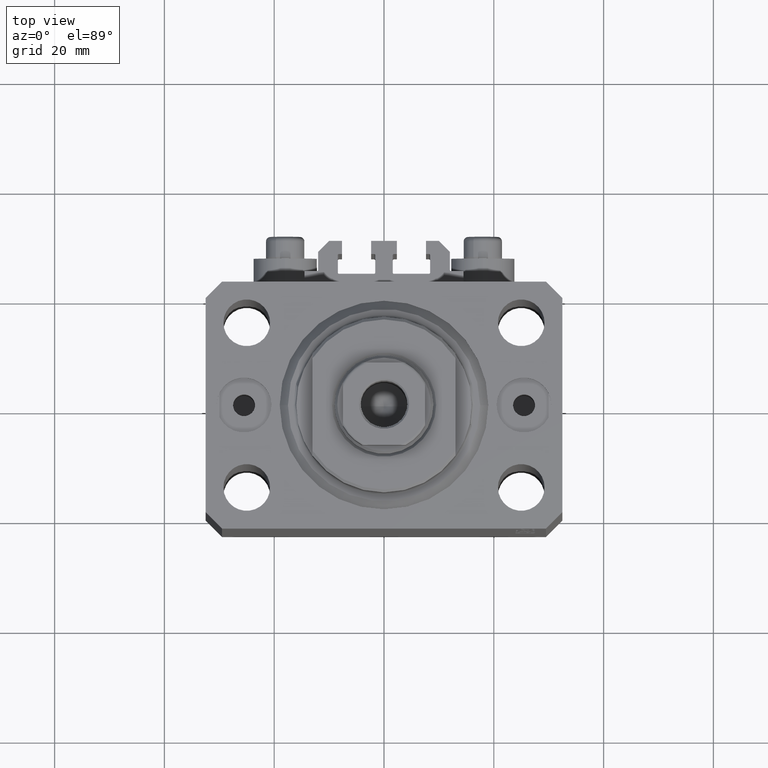
[diagram: clean part render]
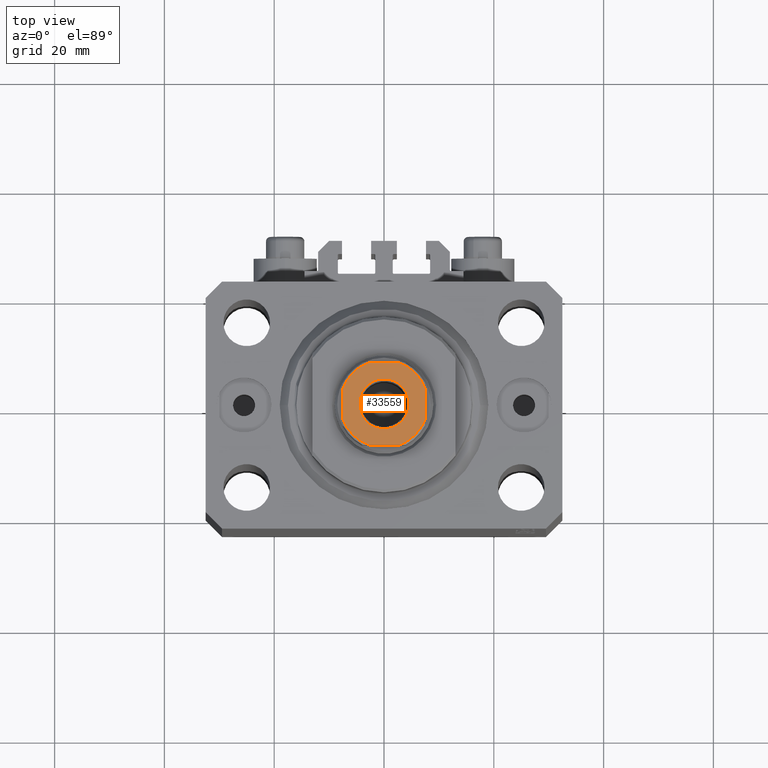
[diagram: same view with one face highlighted and labeled with its STEP entity id]
A machine part, top view. The second image highlights one B-rep face of the part: STEP entity #33559.
In plain terms, the highlighted planar face has unit normal (0, 0, 1).
Its self-contained STEP definition (entity closure, byte-faithful):
#932 = CARTESIAN_POINT ( 'NONE',  ( 0.000000000000000000, 0.000000000000000000, 96.10000000000000853 ) ) ;
#1115 = ORIENTED_EDGE ( 'NONE', *, *, #44009, .T. ) ;
#1451 = DIRECTION ( 'NONE',  ( 1.000000000000000000, 0.000000000000000000, 0.000000000000000000 ) ) ;
#2045 = CARTESIAN_POINT ( 'NONE',  ( 2.783882181415008539, -7.500000000000000888, 96.10000000000000853 ) ) ;
#2727 = VERTEX_POINT ( 'NONE', #31335 ) ;
#3450 = AXIS2_PLACEMENT_3D ( 'NONE', #31912, #28109, #6607 ) ;
#4584 = DIRECTION ( 'NONE',  ( -0.000000000000000000, 0.000000000000000000, 1.000000000000000000 ) ) ;
#4792 = CARTESIAN_POINT ( 'NONE',  ( -7.499999999999998224, -2.783882181415016088, 96.10000000000000853 ) ) ;
#5209 = AXIS2_PLACEMENT_3D ( 'NONE', #932, #26703, #36978 ) ;
#5539 = CARTESIAN_POINT ( 'NONE',  ( 7.500000000000000888, -2.783882181415009427, 96.10000000000000853 ) ) ;
#5672 = VERTEX_POINT ( 'NONE', #31428 ) ;
#6607 = DIRECTION ( 'NONE',  ( 1.000000000000000000, 0.000000000000000000, 0.000000000000000000 ) ) ;
#6938 = VERTEX_POINT ( 'NONE', #5539 ) ;
#7263 = AXIS2_PLACEMENT_3D ( 'NONE', #37286, #4584, #19163 ) ;
#7560 = DIRECTION ( 'NONE',  ( 0.000000000000000000, -0.000000000000000000, -1.000000000000000000 ) ) ;
#9251 = VECTOR ( 'NONE', #13771, 1000.000000000000000 ) ;
#9640 = DIRECTION ( 'NONE',  ( 1.156482317317871478E-16, 1.000000000000000000, -0.000000000000000000 ) ) ;
#9981 = CARTESIAN_POINT ( 'NONE',  ( -7.499999999999997335, -7.500000000000000888, 96.10000000000000853 ) ) ;
#10536 = VERTEX_POINT ( 'NONE', #2045 ) ;
#10592 = CIRCLE ( 'NONE', #5209, 8.000000000000000000 ) ;
#11606 = ORIENTED_EDGE ( 'NONE', *, *, #16324, .T. ) ;
#11663 = DIRECTION ( 'NONE',  ( -0.000000000000000000, 0.000000000000000000, 1.000000000000000000 ) ) ;
#11679 = VERTEX_POINT ( 'NONE', #40163 ) ;
#11767 = CARTESIAN_POINT ( 'NONE',  ( -2.783882181415013868, 7.499999999999999112, 96.10000000000000853 ) ) ;
#12438 = FACE_BOUND ( 'NONE', #24336, .T. ) ;
#13100 = EDGE_LOOP ( 'NONE', ( #19805, #24551, #11606, #47214, #1115, #23769, #36707, #19980 ) ) ;
#13417 = VECTOR ( 'NONE', #23595, 1000.000000000000000 ) ;
#13748 = ORIENTED_EDGE ( 'NONE', *, *, #37952, .T. ) ;
#13771 = DIRECTION ( 'NONE',  ( -1.000000000000000000, -5.782411586589357392E-17, -0.000000000000000000 ) ) ;
#15324 = DIRECTION ( 'NONE',  ( -0.000000000000000000, 0.000000000000000000, 1.000000000000000000 ) ) ;
#15390 = EDGE_CURVE ( 'NONE', #11679, #39696, #18745, .T. ) ;
#15860 = VECTOR ( 'NONE', #9640, 1000.000000000000000 ) ;
#16324 = EDGE_CURVE ( 'NONE', #2727, #10536, #41728, .T. ) ;
#16652 = CARTESIAN_POINT ( 'NONE',  ( -7.499999999999998224, 7.499999999999999112, 96.10000000000000853 ) ) ;
#17153 = CIRCLE ( 'NONE', #21723, 4.549999999999970512 ) ;
#17691 = CIRCLE ( 'NONE', #42825, 8.000000000000000000 ) ;
#18741 = EDGE_CURVE ( 'NONE', #19527, #2727, #38621, .T. ) ;
#18745 = CIRCLE ( 'NONE', #20228, 8.000000000000000000 ) ;
#19163 = DIRECTION ( 'NONE',  ( 1.000000000000000000, 0.000000000000000000, 0.000000000000000000 ) ) ;
#19527 = VERTEX_POINT ( 'NONE', #4792 ) ;
#19805 = ORIENTED_EDGE ( 'NONE', *, *, #30770, .T. ) ;
#19980 = ORIENTED_EDGE ( 'NONE', *, *, #24979, .T. ) ;
#20228 = AXIS2_PLACEMENT_3D ( 'NONE', #29659, #15324, #1451 ) ;
#21602 = EDGE_CURVE ( 'NONE', #10536, #6938, #10592, .T. ) ;
#21723 = AXIS2_PLACEMENT_3D ( 'NONE', #29067, #7560, #29300 ) ;
#22726 = FACE_OUTER_BOUND ( 'NONE', #13100, .T. ) ;
#22934 = CARTESIAN_POINT ( 'NONE',  ( 0.000000000000000000, 0.000000000000000000, 96.10000000000000853 ) ) ;
#23107 = DIRECTION ( 'NONE',  ( 1.000000000000000000, 0.000000000000000000, 0.000000000000000000 ) ) ;
#23595 = DIRECTION ( 'NONE',  ( 1.000000000000000000, 5.782411586589358625E-17, 0.000000000000000000 ) ) ;
#23769 = ORIENTED_EDGE ( 'NONE', *, *, #15390, .T. ) ;
#24324 = EDGE_CURVE ( 'NONE', #39696, #29210, #39993, .T. ) ;
#24336 = EDGE_LOOP ( 'NONE', ( #41127, #13748 ) ) ;
#24551 = ORIENTED_EDGE ( 'NONE', *, *, #18741, .T. ) ;
#24979 = EDGE_CURVE ( 'NONE', #29210, #5672, #17691, .T. ) ;
#25450 = CARTESIAN_POINT ( 'NONE',  ( -7.499999999999998224, 7.499999999999999112, 96.10000000000000853 ) ) ;
#26522 = DIRECTION ( 'NONE',  ( -0.000000000000000000, 0.000000000000000000, 1.000000000000000000 ) ) ;
#26703 = DIRECTION ( 'NONE',  ( -0.000000000000000000, 0.000000000000000000, 1.000000000000000000 ) ) ;
#27075 = VERTEX_POINT ( 'NONE', #38012 ) ;
#28050 = VECTOR ( 'NONE', #45528, 1000.000000000000000 ) ;
#28109 = DIRECTION ( 'NONE',  ( 0.000000000000000000, -0.000000000000000000, -1.000000000000000000 ) ) ;
#29067 = CARTESIAN_POINT ( 'NONE',  ( 0.000000000000000000, 0.000000000000000000, 96.10000000000000853 ) ) ;
#29170 = DIRECTION ( 'NONE',  ( 1.000000000000000000, 0.000000000000000000, 0.000000000000000000 ) ) ;
#29210 = VERTEX_POINT ( 'NONE', #11767 ) ;
#29300 = DIRECTION ( 'NONE',  ( 1.000000000000000000, 0.000000000000000000, 0.000000000000000000 ) ) ;
#29659 = CARTESIAN_POINT ( 'NONE',  ( 0.000000000000000000, 0.000000000000000000, 96.10000000000000853 ) ) ;
#29660 = CARTESIAN_POINT ( 'NONE',  ( 2.783882181415012980, 7.500000000000000000, 96.10000000000000853 ) ) ;
#29876 = VERTEX_POINT ( 'NONE', #34538 ) ;
#30770 = EDGE_CURVE ( 'NONE', #5672, #19527, #30972, .T. ) ;
#30972 = LINE ( 'NONE', #16652, #28050 ) ;
#31335 = CARTESIAN_POINT ( 'NONE',  ( -2.783882181415010315, -7.500000000000000888, 96.10000000000000853 ) ) ;
#31428 = CARTESIAN_POINT ( 'NONE',  ( -7.499999999999998224, 2.783882181415015644, 96.10000000000000853 ) ) ;
#31912 = CARTESIAN_POINT ( 'NONE',  ( 0.000000000000000000, 0.000000000000000000, 96.10000000000000853 ) ) ;
#33559 = ADVANCED_FACE ( 'NONE', ( #12438, #22726 ), #33926, .T. ) ;
#33926 = PLANE ( 'NONE',  #7263 ) ;
#34080 = CARTESIAN_POINT ( 'NONE',  ( 0.000000000000000000, 0.000000000000000000, 96.10000000000000853 ) ) ;
#34538 = CARTESIAN_POINT ( 'NONE',  ( -4.549999999999970512, 5.572142936120421828E-16, 96.10000000000000853 ) ) ;
#36388 = EDGE_CURVE ( 'NONE', #27075, #29876, #17153, .T. ) ;
#36707 = ORIENTED_EDGE ( 'NONE', *, *, #24324, .T. ) ;
#36978 = DIRECTION ( 'NONE',  ( 1.000000000000000000, 0.000000000000000000, 0.000000000000000000 ) ) ;
#37286 = CARTESIAN_POINT ( 'NONE',  ( 0.000000000000000000, 0.000000000000000000, 96.10000000000000853 ) ) ;
#37952 = EDGE_CURVE ( 'NONE', #29876, #27075, #44618, .T. ) ;
#38012 = CARTESIAN_POINT ( 'NONE',  ( 4.549999999999970512, 0.000000000000000000, 96.10000000000000853 ) ) ;
#38520 = LINE ( 'NONE', #42331, #15860 ) ;
#38621 = CIRCLE ( 'NONE', #43978, 8.000000000000000000 ) ;
#39696 = VERTEX_POINT ( 'NONE', #29660 ) ;
#39993 = LINE ( 'NONE', #25450, #9251 ) ;
#40163 = CARTESIAN_POINT ( 'NONE',  ( 7.500000000000000888, 2.783882181415007206, 96.10000000000000853 ) ) ;
#41127 = ORIENTED_EDGE ( 'NONE', *, *, #36388, .T. ) ;
#41728 = LINE ( 'NONE', #9981, #13417 ) ;
#42331 = CARTESIAN_POINT ( 'NONE',  ( 7.500000000000001776, 7.500000000000000000, 96.10000000000000853 ) ) ;
#42825 = AXIS2_PLACEMENT_3D ( 'NONE', #34080, #11663, #23107 ) ;
#43978 = AXIS2_PLACEMENT_3D ( 'NONE', #22934, #26522, #29170 ) ;
#44009 = EDGE_CURVE ( 'NONE', #6938, #11679, #38520, .T. ) ;
#44618 = CIRCLE ( 'NONE', #3450, 4.549999999999970512 ) ;
#45528 = DIRECTION ( 'NONE',  ( 5.782411586589357392E-17, -1.000000000000000000, 0.000000000000000000 ) ) ;
#47214 = ORIENTED_EDGE ( 'NONE', *, *, #21602, .T. ) ;